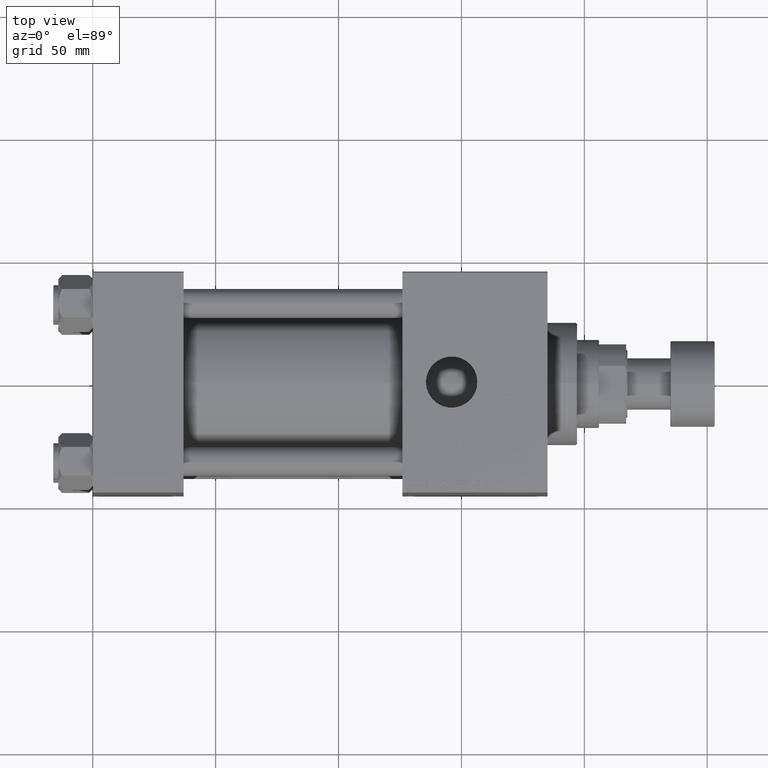
[diagram: clean part render]
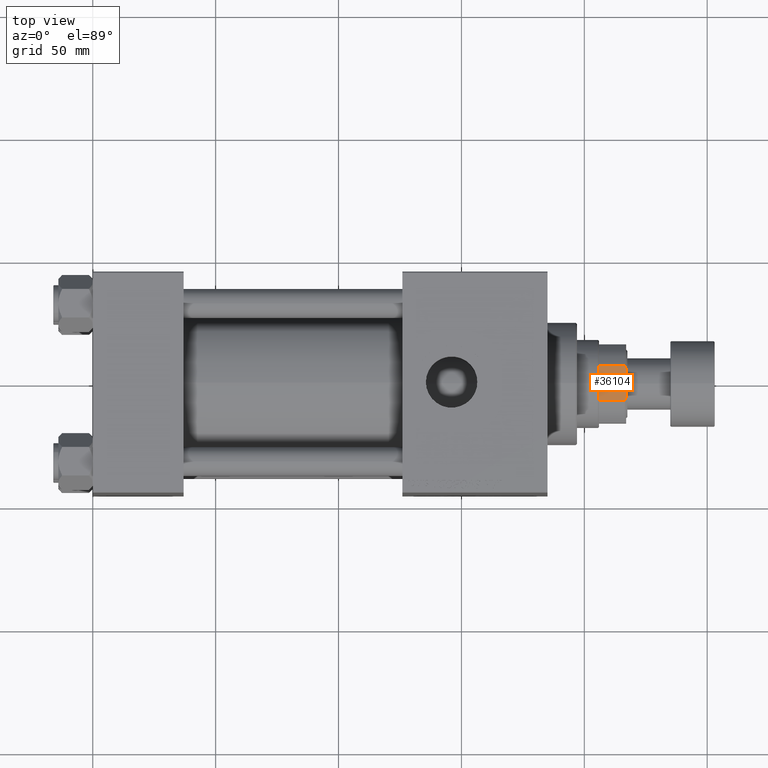
[diagram: same view with one face highlighted and labeled with its STEP entity id]
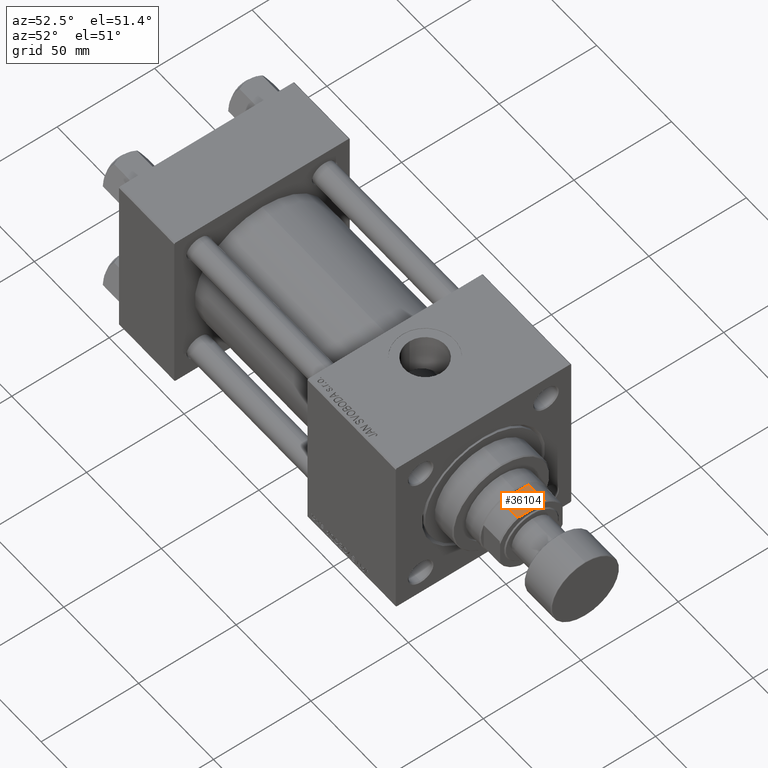
[diagram: same view with one face highlighted and labeled with its STEP entity id]
A machine part, top view. The second image highlights one B-rep face of the part: STEP entity #36104.
A second angle (auxiliary view) of the same face is appended — the face is thin or edge-on in the first view.
In plain terms, the highlighted planar face has unit normal (-0, 0, -1).
Its self-contained STEP definition (entity closure, byte-faithful):
#541 = VERTEX_POINT ( 'NONE', #32053 ) ;
#1359 = EDGE_LOOP ( 'NONE', ( #35541, #4515, #17250, #46727, #26285, #27210 ) ) ;
#2015 = CARTESIAN_POINT ( 'NONE',  ( 15.99999999999999645, -7.088723439378925129, 179.5000000000000284 ) ) ;
#2197 = EDGE_CURVE ( 'NONE', #33528, #36027, #11068, .T. ) ;
#2773 = CARTESIAN_POINT ( 'NONE',  ( 16.00000000000000355, -5.744562646538009076, 180.0000000000000284 ) ) ;
#2959 = EDGE_CURVE ( 'NONE', #21509, #541, #21150, .T. ) ;
#3028 = CARTESIAN_POINT ( 'NONE',  ( 15.99999999999999645, -7.088723439378925129, 179.5000000000000284 ) ) ;
#4515 = ORIENTED_EDGE ( 'NONE', *, *, #49079, .T. ) ;
#5753 = EDGE_CURVE ( 'NONE', #35189, #32235, #29536, .T. ) ;
#8177 = B_SPLINE_CURVE_WITH_KNOTS ( 'NONE', 3,
 ( #10323, #30286, #49513, #14924 ),
 .UNSPECIFIED., .F., .F.,
 ( 4, 4 ),
 ( 0.000000000000000000, 0.001434143729551135569 ),
 .UNSPECIFIED. ) ;
#10323 = CARTESIAN_POINT ( 'NONE',  ( 16.00000000000000000, 7.088723439378916247, 179.5000000000000000 ) ) ;
#11068 = LINE ( 'NONE', #33859, #37618 ) ;
#11299 = CARTESIAN_POINT ( 'NONE',  ( 15.99999999999999645, -7.088723439378925129, 168.9999999999999716 ) ) ;
#13924 = CARTESIAN_POINT ( 'NONE',  ( 16.00000000000000355, -5.744562646538009076, 180.0000000000000284 ) ) ;
#14885 = PLANE ( 'NONE',  #36090 ) ;
#14924 = CARTESIAN_POINT ( 'NONE',  ( 16.00000000000000355, 5.744562646537965556, 180.0000000000000284 ) ) ;
#17250 = ORIENTED_EDGE ( 'NONE', *, *, #2959, .F. ) ;
#20774 = VECTOR ( 'NONE', #28707, 1000.000000000000000 ) ;
#21150 = LINE ( 'NONE', #32681, #38466 ) ;
#21509 = VERTEX_POINT ( 'NONE', #13924 ) ;
#22559 = DIRECTION ( 'NONE',  ( -1.000000000000000000, -2.168404344971009115E-16, 0.000000000000000000 ) ) ;
#26210 = CARTESIAN_POINT ( 'NONE',  ( 15.99999999999999645, -7.088723439378925129, -0.001000000000001000089 ) ) ;
#26285 = ORIENTED_EDGE ( 'NONE', *, *, #5753, .F. ) ;
#27175 = DIRECTION ( 'NONE',  ( 2.168404344971009115E-16, -1.000000000000000000, 0.000000000000000000 ) ) ;
#27210 = ORIENTED_EDGE ( 'NONE', *, *, #39025, .T. ) ;
#28221 = CARTESIAN_POINT ( 'NONE',  ( 16.00000000000000000, 7.088723439378916247, 179.5000000000000000 ) ) ;
#28707 = DIRECTION ( 'NONE',  ( -2.168404344971008868E-16, 1.000000000000000000, -0.000000000000000000 ) ) ;
#29536 = LINE ( 'NONE', #26210, #45904 ) ;
#29932 = CARTESIAN_POINT ( 'NONE',  ( 16.00000000000000355, -6.645462757301131340, 179.6795515649600361 ) ) ;
#30286 = CARTESIAN_POINT ( 'NONE',  ( 16.00000000000000000, 6.645462757301100254, 179.6795515649599793 ) ) ;
#30494 = CARTESIAN_POINT ( 'NONE',  ( 16.00000000000000000, 16.00000000000000000, 180.0000000000000284 ) ) ;
#30517 = DIRECTION ( 'NONE',  ( -0.000000000000000000, -0.000000000000000000, 1.000000000000000000 ) ) ;
#32053 = CARTESIAN_POINT ( 'NONE',  ( 16.00000000000000355, 5.744562646537965556, 180.0000000000000284 ) ) ;
#32235 = VERTEX_POINT ( 'NONE', #2015 ) ;
#32270 = EDGE_CURVE ( 'NONE', #21509, #32235, #37328, .T. ) ;
#32681 = CARTESIAN_POINT ( 'NONE',  ( 16.00000000000000000, 16.00000000000000000, 180.0000000000000284 ) ) ;
#33528 = VERTEX_POINT ( 'NONE', #39617 ) ;
#33859 = CARTESIAN_POINT ( 'NONE',  ( 16.00000000000000000, 7.088723439378916247, -0.001000000000001000089 ) ) ;
#34404 = DIRECTION ( 'NONE',  ( -0.000000000000000000, -0.000000000000000000, 1.000000000000000000 ) ) ;
#35189 = VERTEX_POINT ( 'NONE', #11299 ) ;
#35541 = ORIENTED_EDGE ( 'NONE', *, *, #2197, .T. ) ;
#36027 = VERTEX_POINT ( 'NONE', #28221 ) ;
#36090 = AXIS2_PLACEMENT_3D ( 'NONE', #30494, #22559, #27175 ) ;
#36104 = ADVANCED_FACE ( 'NONE', ( #46131 ), #14885, .F. ) ;
#37328 = B_SPLINE_CURVE_WITH_KNOTS ( 'NONE', 3,
 ( #2773, #48915, #29932, #3028 ),
 .UNSPECIFIED., .F., .F.,
 ( 4, 4 ),
 ( 8.673617379884035472E-19, 0.001434143729551093501 ),
 .UNSPECIFIED. ) ;
#37618 = VECTOR ( 'NONE', #30517, 1000.000000000000000 ) ;
#37809 = DIRECTION ( 'NONE',  ( -2.168404344971008868E-16, 1.000000000000000000, -0.000000000000000000 ) ) ;
#38466 = VECTOR ( 'NONE', #37809, 1000.000000000000000 ) ;
#39025 = EDGE_CURVE ( 'NONE', #35189, #33528, #40507, .T. ) ;
#39617 = CARTESIAN_POINT ( 'NONE',  ( 16.00000000000000000, 7.088723439378916247, 168.9999999999999716 ) ) ;
#40507 = LINE ( 'NONE', #44338, #20774 ) ;
#44338 = CARTESIAN_POINT ( 'NONE',  ( 16.00000000000000000, 16.00000000000000000, 169.0000000000000000 ) ) ;
#45904 = VECTOR ( 'NONE', #34404, 1000.000000000000000 ) ;
#46131 = FACE_OUTER_BOUND ( 'NONE', #1359, .T. ) ;
#46727 = ORIENTED_EDGE ( 'NONE', *, *, #32270, .T. ) ;
#48915 = CARTESIAN_POINT ( 'NONE',  ( 16.00000000000000355, -6.197659614356047619, 179.8468915343184449 ) ) ;
#49079 = EDGE_CURVE ( 'NONE', #36027, #541, #8177, .T. ) ;
#49513 = CARTESIAN_POINT ( 'NONE',  ( 16.00000000000000355, 6.197659614356013869, 179.8468915343184449 ) ) ;